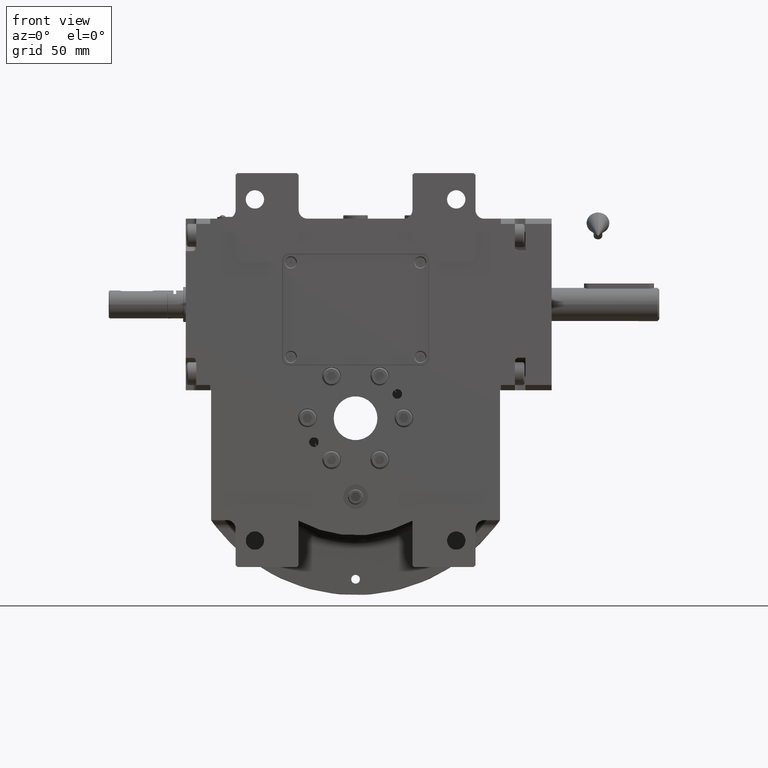
[diagram: clean part render]
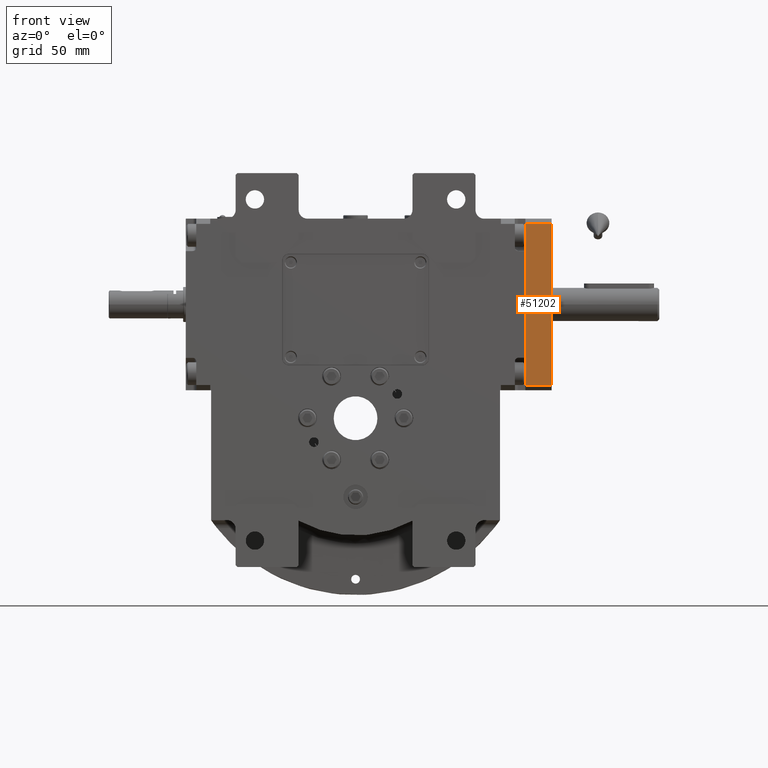
[diagram: same view with one face highlighted and labeled with its STEP entity id]
A machine part, front view. The second image highlights one B-rep face of the part: STEP entity #51202.
In plain terms, the highlighted planar face has unit normal (0, -1, -0).
Its self-contained STEP definition (entity closure, byte-faithful):
#3148 = EDGE_CURVE ( 'NONE', #41626, #33053, #8855, .T. ) ;
#3987 = CARTESIAN_POINT ( 'NONE',  ( -40.49999999999940314, -15.00000000000000000, -46.00000000000052580 ) ) ;
#5477 = VECTOR ( 'NONE', #70589, 1000.000000000000000 ) ;
#7114 = LINE ( 'NONE', #69159, #48839 ) ;
#7232 = CARTESIAN_POINT ( 'NONE',  ( -40.49999999999940314, 0.000000000000000000, -46.00000000000000000 ) ) ;
#8855 = LINE ( 'NONE', #60243, #5477 ) ;
#11635 = ORIENTED_EDGE ( 'NONE', *, *, #3148, .T. ) ;
#17085 = CARTESIAN_POINT ( 'NONE',  ( -40.50000000000037659, -15.00000000000000000, 46.00000000000106581 ) ) ;
#28129 = ORIENTED_EDGE ( 'NONE', *, *, #30475, .F. ) ;
#28949 = CARTESIAN_POINT ( 'NONE',  ( -40.50000000000037659, 0.000000000000000000, 46.00000000000105160 ) ) ;
#30475 = EDGE_CURVE ( 'NONE', #71144, #44061, #7114, .T. ) ;
#33053 = VERTEX_POINT ( 'NONE', #61732 ) ;
#38713 = LINE ( 'NONE', #45318, #39071 ) ;
#39071 = VECTOR ( 'NONE', #50522, 1000.000000000000000 ) ;
#41626 = VERTEX_POINT ( 'NONE', #7232 ) ;
#41730 = DIRECTION ( 'NONE',  ( -9.547918011776207408E-15, 4.930380657631240582E-32, 1.000000000000000000 ) ) ;
#44061 = VERTEX_POINT ( 'NONE', #17085 ) ;
#44394 = EDGE_CURVE ( 'NONE', #41626, #71144, #38713, .T. ) ;
#45318 = CARTESIAN_POINT ( 'NONE',  ( -40.49999999999940314, 0.000000000000000000, -46.00000000000000000 ) ) ;
#48839 = VECTOR ( 'NONE', #64732, 1000.000000000000000 ) ;
#50522 = DIRECTION ( 'NONE',  ( -9.547918011776207408E-15, 4.930380657631240582E-32, 1.000000000000000000 ) ) ;
#51202 = ADVANCED_FACE ( 'NONE', ( #70712 ), #63129, .T. ) ;
#51460 = AXIS2_PLACEMENT_3D ( 'NONE', #52424, #63509, #58310 ) ;
#52424 = CARTESIAN_POINT ( 'NONE',  ( -40.49999999999940314, 0.000000000000000000, -49.00000000000052580 ) ) ;
#58310 = DIRECTION ( 'NONE',  ( -9.547918011776208986E-15, 4.930380657631240582E-32, 1.000000000000000000 ) ) ;
#60243 = CARTESIAN_POINT ( 'NONE',  ( -40.49999999999940314, 0.000000000000000000, -46.00000000000000000 ) ) ;
#61309 = EDGE_LOOP ( 'NONE', ( #66945, #11635, #61355, #28129 ) ) ;
#61355 = ORIENTED_EDGE ( 'NONE', *, *, #72830, .T. ) ;
#61732 = CARTESIAN_POINT ( 'NONE',  ( -40.49999999999940314, -15.00000000000000000, -46.00000000000052580 ) ) ;
#63129 = PLANE ( 'NONE',  #51460 ) ;
#63509 = DIRECTION ( 'NONE',  ( -1.000000000000000000, -1.406162010298009320E-30, -9.547918011776208986E-15 ) ) ;
#64249 = LINE ( 'NONE', #3987, #71676 ) ;
#64732 = DIRECTION ( 'NONE',  ( -1.399999034475975771E-30, -1.000000000000000000, 0.000000000000000000 ) ) ;
#66945 = ORIENTED_EDGE ( 'NONE', *, *, #44394, .F. ) ;
#69159 = CARTESIAN_POINT ( 'NONE',  ( -40.50000000000037659, 0.000000000000000000, 46.00000000000105160 ) ) ;
#70589 = DIRECTION ( 'NONE',  ( -1.399999034475975771E-30, -1.000000000000000000, 0.000000000000000000 ) ) ;
#70712 = FACE_OUTER_BOUND ( 'NONE', #61309, .T. ) ;
#71144 = VERTEX_POINT ( 'NONE', #28949 ) ;
#71676 = VECTOR ( 'NONE', #41730, 1000.000000000000000 ) ;
#72830 = EDGE_CURVE ( 'NONE', #33053, #44061, #64249, .T. ) ;